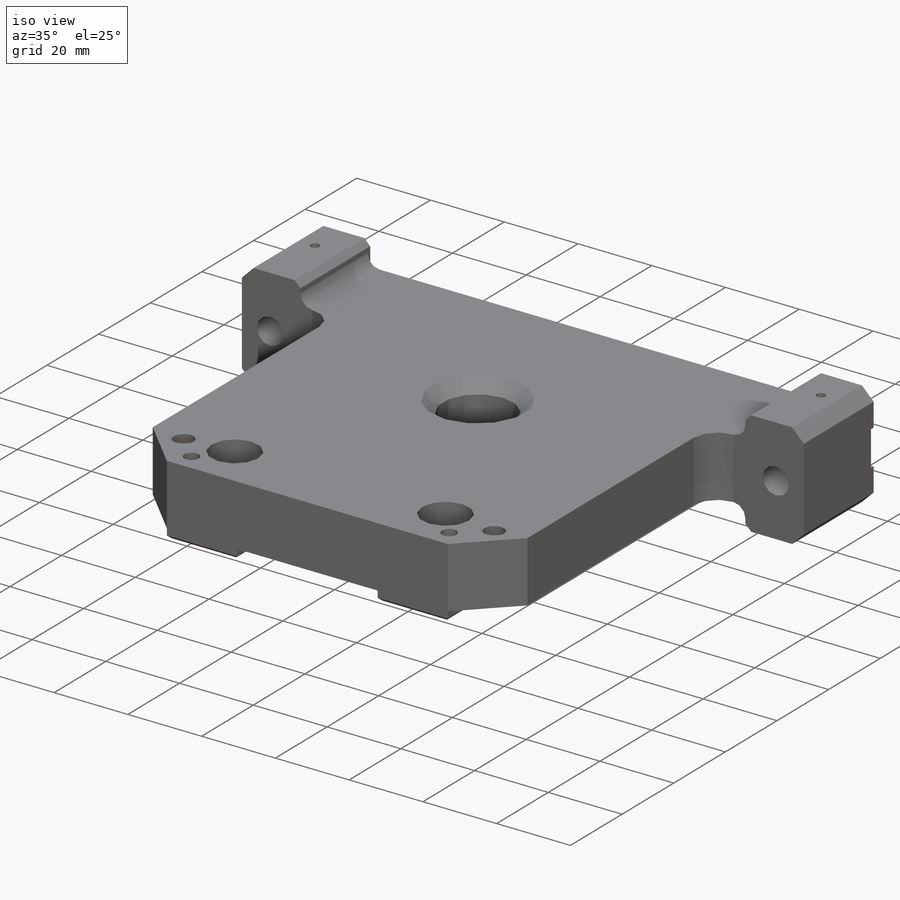
[diagram: iso view]
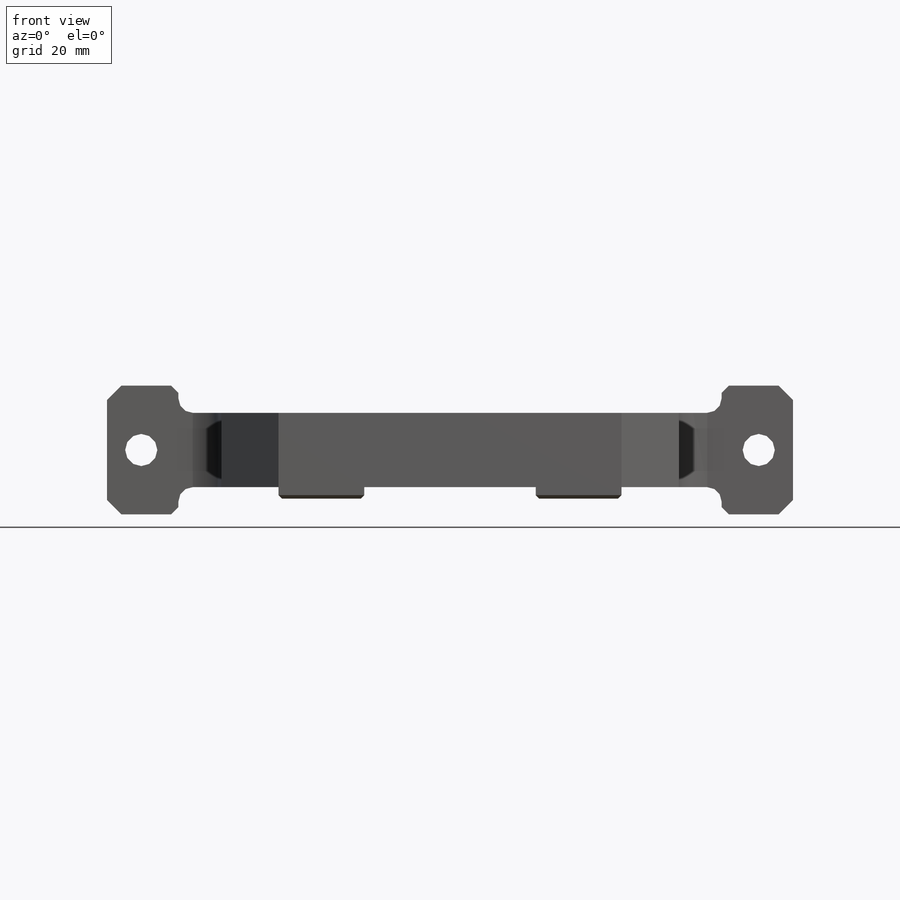
[diagram: front view]
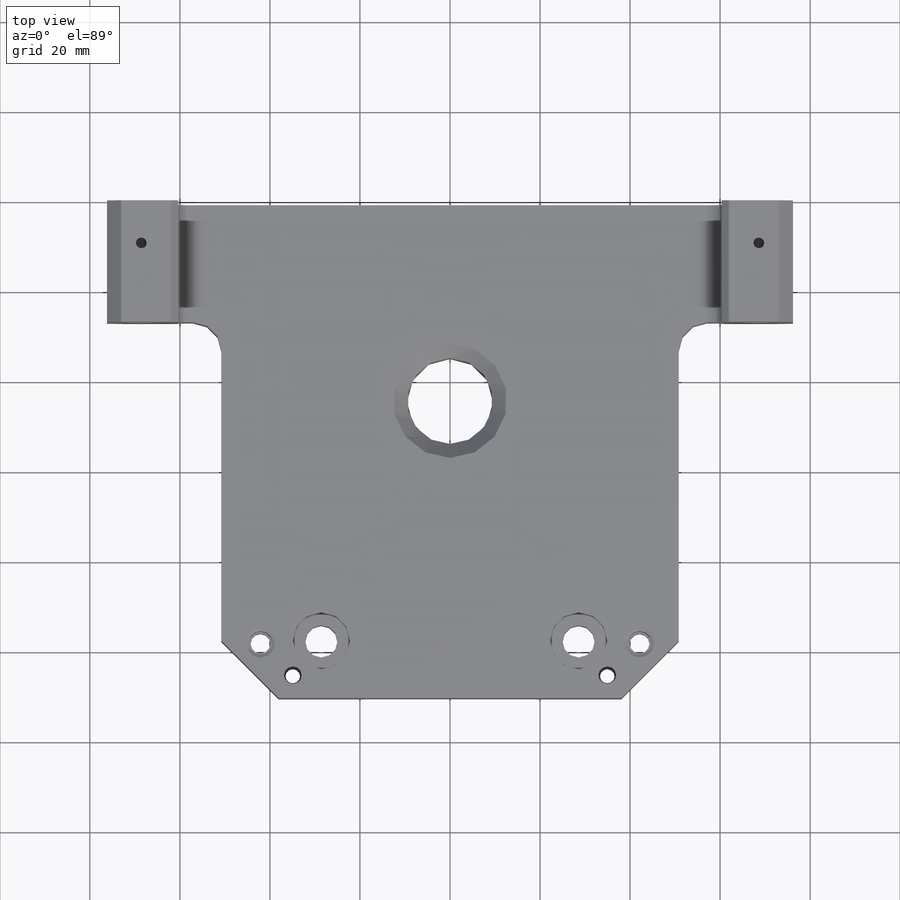
[diagram: top view]
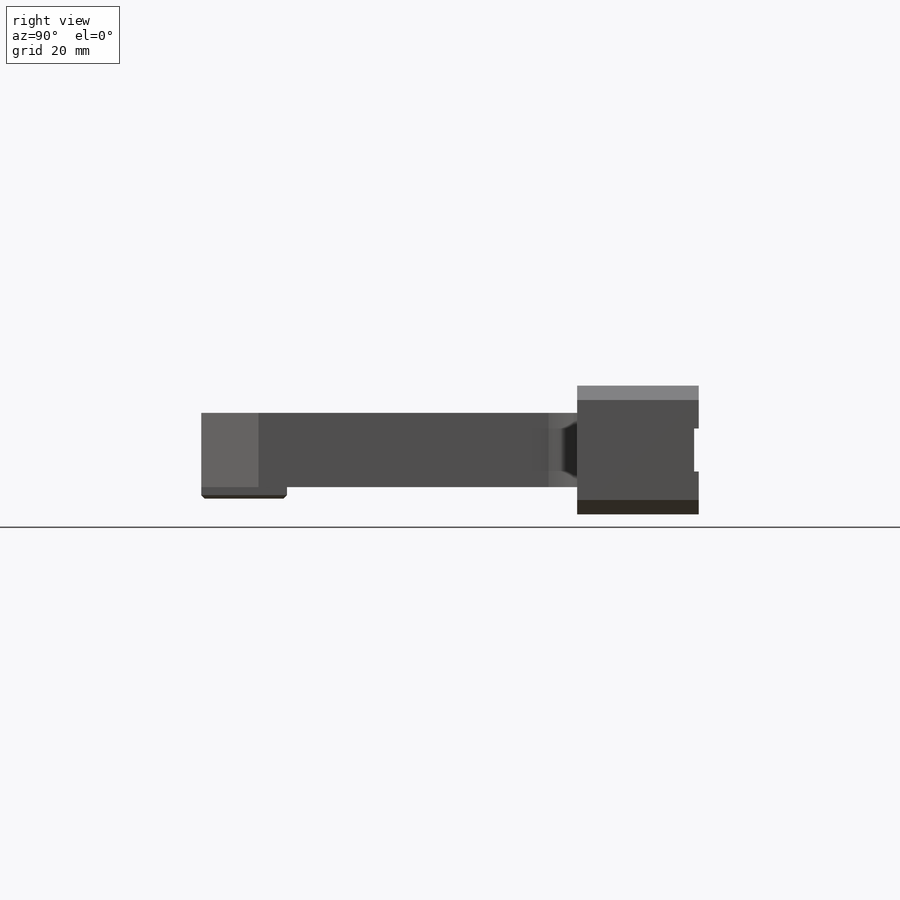
[diagram: right view]
SOLIDWORKS PART (.sldprt)
format: sldprt  version: not decoded by parser v0  size: 803,328 bytes
history: native  units: mm
features: sketch x22, hole x8, extrude x5, chamfer x4, fillet x2, material x1, cut_extrude x1 + 1 further entry (+14 scaffold rows collapsed)
feature tree (58):
  scaffold x14  (default folders/planes/origin — collapsed)
  material  "6061-T6 Al"
  "Origin"  ID=-1
  sketch  "Sketch1"  dims[c1.D1=60.325mm c1.D2=27.94mm c1.D3=76.2mm c1.D4=16.51mm c1.D5=16.51mm c1.D6=12.7mm c2.D1=76.2mm c2.D7=~16.479315mm c2.D4=25.4mm c2.D6=19.05mm]
  extrude  "Extrude1"  Depth=11.1252mm
  sketch  "Sketch2"  dims[c1.D3=12.7mm c1.D1=25.4mm c1.D2=19.05mm c2.D3=19.05mm c2.D4=16.51mm c2.D5=16.51mm c2.D6=34.29mm c3.D3=63.5mm c3.D2=25.4mm]
  extrude  "Extrude2"  Depth=99.3648mm
  sketch  "Sketch4"  dims[c1.D1=19.05mm c1.D2=~13.040449mm c2.D1=19.05mm c2.D2=~13.855477mm c3.D1=19.05mm c3.D2=38.1mm c3.D3=19.05mm c3.D4=19.05mm c3.D5=19.05mm c3.D6=91.44mm]
  extrude  "Extrude4"  Depth=2.54mm
  sketch  "Sketch23"  dims[c1.D1=~13.157428mm c1.D2=~25.354205mm c2.D1=15.8877mm c2.D2=~11.635631mm c2.D3=~24.065246mm]
  extrude  "Extrude17"  [1 undecoded]
  sketch  "Sketch45"  dims[D1=28.575mm D2=15.875mm]
  extrude  "Extrude20"  [1 undecoded]
  sketch  "Sketch46"  dims[D1=9.525mm]
  cut_extrude  "Extrude21"  Depth=1.016mm
  fillet  "Fillet3"  Radius=3.175mm
  hole  "1/4 Clearance Hole1"  Diameter=7.14248mm Depth=27.0129mm
  sketch  "Sketch10"  dims[c1.D1=68.072mm c1.D2=68.58mm c1.D3=50.8mm c1.D4=35.56mm c1.D5=6.35mm c2.D1=137.16mm c2.D3=53.975mm]
  sketch  "Sketch9"  dims[hole-wizard template sketch: 60 standard entries collapsed; hole parameters kept: c18.Thru Hole Depth=27.0129mm]
  hole  "3/4 (0.75) Diameter Hole1"  Diameter=19.05mm Depth=22.5425mm
  sketch  "Sketch31"  dims[D1=44.45mm]
  sketch  "Sketch30"  dims[hole-wizard template sketch: 47 standard entries collapsed; hole parameters kept: c15.Thru Hole Depth=22.5425mm c15.Near C'Sink Dia.=25.4mm c15.D4=~3.666174mm c15.Near C'Sink Angle=90.0deg c15.Far C'Sink Dia.=20.32mm c15.D6=~9.919017mm c15.Far C'Sink Angle=90.0deg]
  hole  "CBORE for  Socket Head Cap Screw0"  Diameter=7.14248mm Depth=19.05mm
  sketch  "Sketch8"  dims[D1=57.15mm D2=97.79mm D3=28.575mm]
  sketch  "Sketch7"  dims[hole-wizard template sketch: 42 standard entries collapsed; hole parameters kept: c12.Thru Hole Depth=19.05mm c12.C'Bore Dia.=12.7mm c12.C'Bore Depth=6.35mm c12.Far C'Sink Dia.=8.128mm c12.D6=~2.963249mm c12.Far C'Sink Angle=90.0deg]
  hole  "1/8" Press Pin Holes"  Diameter=3.175mm Depth=6.35mm
  sketch  "Sketch48"  dims[c1.D3=~7.14248mm c1.D1=68.58mm c1.D2=137.16mm c2.D3=9.525mm]
  sketch  "Sketch47"  dims[hole-wizard template sketch: 35 standard entries collapsed; hole parameters above]
  hole  "3/32 (0.09375) Diameter Hole1"  Diameter=2.38125mm Depth=12.7mm
  sketch  "Sketch50"
  sketch  "Sketch49"  dims[hole-wizard template sketch: 47 standard entries collapsed; hole parameters kept: c15.Hole Depth=12.7mm c15.D3=~14.816244mm c15.Drill Angle=118.0deg]
  hole  "3/32 (0.09375) Diameter Hole2"  Diameter=2.38125mm Depth=4.191mm
  sketch  "Sketch52"  dims[D1=9.525mm]
  sketch  "Sketch51"  dims[hole-wizard template sketch: 47 standard entries collapsed; hole parameters kept: c15.Hole Depth=4.191mm c15.D3=~14.816244mm c15.Drill Angle=118.0deg]
  fillet  "Fillet4"  Radius=6.35mm
  chamfer  "Chamfer6"  Distance=3.175mm Angle=45deg
  chamfer  "Chamfer7"  Distance=12.7mm Angle=45deg
  chamfer  "Chamfer8"  Distance=1.5875mm Angle=45deg
  chamfer  "Chamfer9"  Distance=0.762mm Angle=45deg
  hole  "CBORE for #6 Socket Head Cap Screw2"  Diameter=3.2639mm Depth=19.05mm
  sketch  "Sketch54"  dims[D1=105.41mm D2=69.85mm]
  sketch  "Sketch53"  dims[hole-wizard template sketch: 42 standard entries collapsed; hole parameters kept: c12.Thru Hole Depth=19.05mm c12.C'Bore Dia.=~3.96875mm c12.C'Bore Depth=12.7mm c12.Far C'Sink Dia.=3.81mm c12.D6=~2.963249mm c12.Far C'Sink Angle=90.0deg]
  hole  "Tapped Hole for #8-32 Helicoil2"  Diameter=4.3942mm Depth=22.5425mm
  sketch  "Sketch56"  dims[c1.D1=69.85mm c2.D1=45.0deg c2.D2=10.16mm]
  sketch  "Sketch55"  dims[hole-wizard template sketch: 42 standard entries collapsed; hole parameters kept: c12.Thru Tap Drill Depth=22.5425mm c12.Thread Major Dia.=~5.27558mm c12.Thread Depth=10.3632mm c12.Near C'Sink Dia.=6.604mm c12.D6=~4.399409mm c12.Near C'Sink Angle=120.0deg]
decode coverage: 39 of 42 modeling features carry decoded parameters; 1 rows unclassified (native names shown)
note: ~ marks probable driven/reference dimensions
note: 2 parameter values undecoded
summary: Diameter pulled from absorbed wizard sketch
note: suppression state not decoded; provenance and decode notes live in map.json
